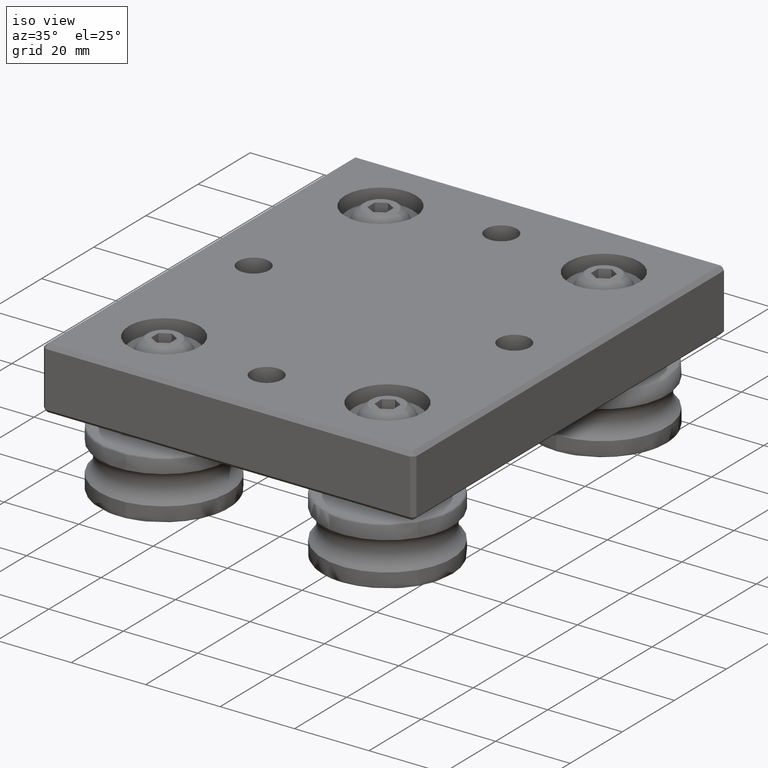
[diagram: clean part render]
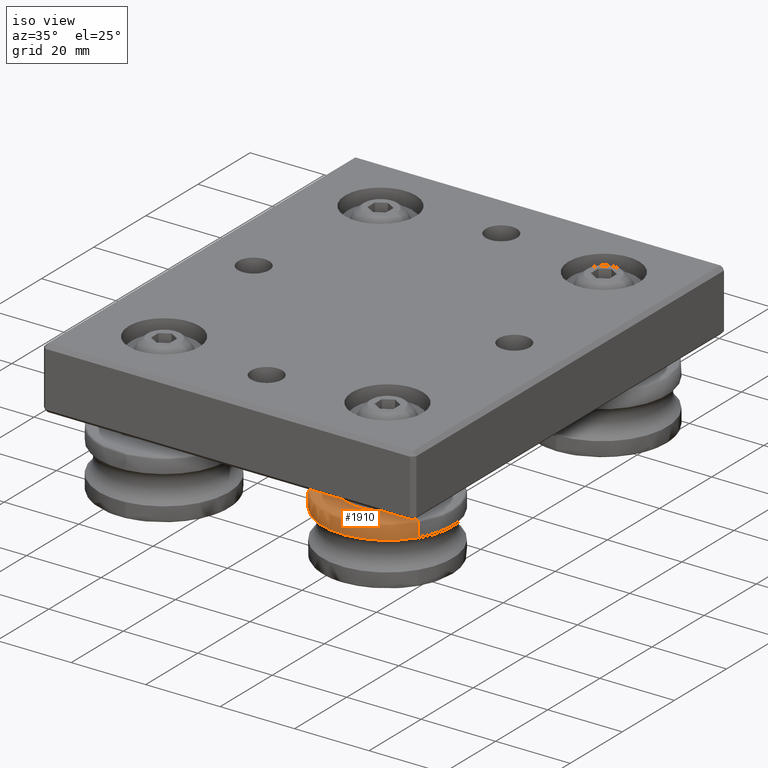
[diagram: same view with one face highlighted and labeled with its STEP entity id]
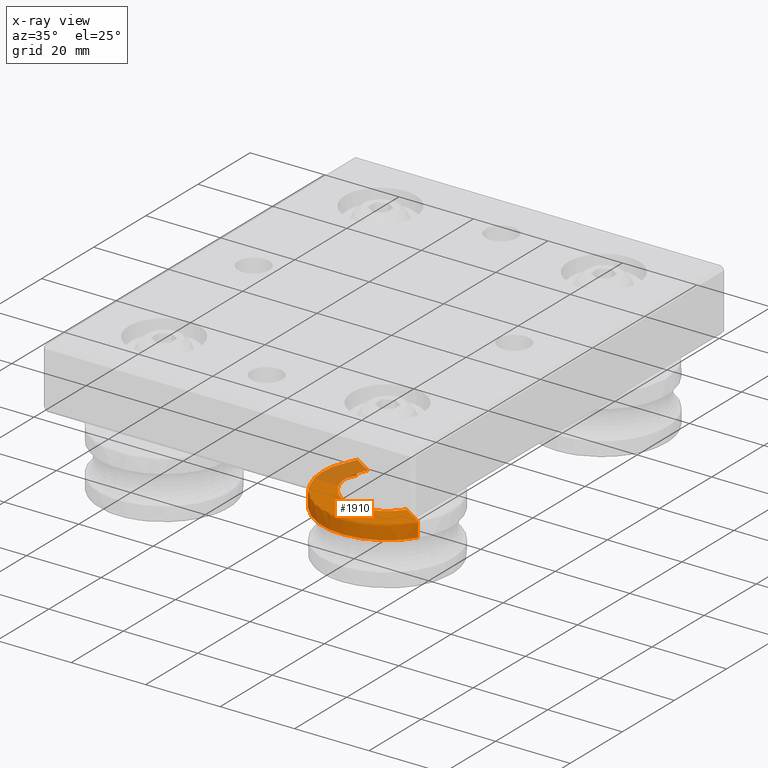
[diagram: x-ray of the same camera — body ghosted, the highlighted face saturated]
A machine part, iso view. The second image highlights one B-rep face of the part: STEP entity #1910.
The next image is the same camera in x-ray: the body ghosted, the highlighted face saturated — about 15% of this face is hidden behind the body in this view.
In plain terms, the highlighted face is a freeform B-spline surface patch.
Its self-contained STEP definition (entity closure, byte-faithful):
#59=(
BOUNDED_CURVE()
B_SPLINE_CURVE(2,(#3633,#3634,#3635,#3636,#3637,#3638,#3639),
 .UNSPECIFIED.,.F.,.F.)
B_SPLINE_CURVE_WITH_KNOTS((3,2,2,3),(-35.0418346007419,-29.0114897153448,
-28.2260915519473,-24.6912064928088),.UNSPECIFIED.)
CURVE()
GEOMETRIC_REPRESENTATION_ITEM()
RATIONAL_B_SPLINE_CURVE((1.,1.,1.,0.707106781186548,1.,1.,1.))
REPRESENTATION_ITEM('')
);
#60=(
BOUNDED_CURVE()
B_SPLINE_CURVE(2,(#3648,#3649,#3650,#3651,#3652,#3653,#3654),
 .UNSPECIFIED.,.F.,.F.)
B_SPLINE_CURVE_WITH_KNOTS((3,2,2,3),(-35.0418346007419,-29.0114897153448,
-28.2260915519473,-24.6912064928088),.UNSPECIFIED.)
CURVE()
GEOMETRIC_REPRESENTATION_ITEM()
RATIONAL_B_SPLINE_CURVE((1.,1.,1.,0.707106781186548,1.,1.,1.))
REPRESENTATION_ITEM('')
);
#73=(
BOUNDED_SURFACE()
B_SPLINE_SURFACE(2,2,((#3569,#3570,#3571,#3572,#3573,#3574,#3575,#3576,
#3577),(#3578,#3579,#3580,#3581,#3582,#3583,#3584,#3585,#3586),(#3587,#3588,
#3589,#3590,#3591,#3592,#3593,#3594,#3595),(#3596,#3597,#3598,#3599,#3600,
#3601,#3602,#3603,#3604),(#3605,#3606,#3607,#3608,#3609,#3610,#3611,#3612,
#3613),(#3614,#3615,#3616,#3617,#3618,#3619,#3620,#3621,#3622),(#3623,#3624,
#3625,#3626,#3627,#3628,#3629,#3630,#3631)),.UNSPECIFIED.,.F.,.T.,.F.)
B_SPLINE_SURFACE_WITH_KNOTS((3,2,2,3),(3,2,2,2,3),(-35.0418346007419,-29.0114897153448,
-28.2260915519473,-24.6590672150182),(4.71238898038469,6.28318530717959,
7.85398163397448,9.42477796076938,10.9955742875643),.UNSPECIFIED.)
GEOMETRIC_REPRESENTATION_ITEM()
RATIONAL_B_SPLINE_SURFACE(((1.,0.707106781186548,1.,0.707106781186548,1.,
0.707106781186548,1.,0.707106781186548,1.),(1.,0.707106781186548,1.,0.707106781186548,
1.,0.707106781186548,1.,0.707106781186548,1.),(1.,0.707106781186548,1.,
0.707106781186548,1.,0.707106781186548,1.,0.707106781186548,1.),(0.707106781186548,
0.5,0.707106781186548,0.5,0.707106781186548,0.5,0.707106781186548,0.5,0.707106781186548),
(1.,0.707106781186548,1.,0.707106781186548,1.,0.707106781186548,1.,0.707106781186548,
1.),(1.,0.707106781186548,1.,0.707106781186548,1.,0.707106781186548,1.,
0.707106781186548,1.),(1.,0.707106781186548,1.,0.707106781186548,1.,0.707106781186548,
1.,0.707106781186548,1.)))
REPRESENTATION_ITEM('')
SURFACE()
);
#283=CIRCLE('',#2178,17.5);
#286=CIRCLE('',#2181,10.9696551146025);
#287=CIRCLE('',#2182,10.9696551146025);
#288=CIRCLE('',#2183,10.9696551146025);
#289=CIRCLE('',#2184,10.9696551146025);
#401=FACE_OUTER_BOUND('',#548,.T.);
#548=EDGE_LOOP('',(#1582,#1583,#1584,#1585,#1586,#1587,#1588));
#961=VERTEX_POINT('',#3563);
#962=VERTEX_POINT('',#3565);
#963=VERTEX_POINT('',#3632);
#964=VERTEX_POINT('',#3640);
#965=VERTEX_POINT('',#3642);
#966=VERTEX_POINT('',#3644);
#967=VERTEX_POINT('',#3646);
#1173=EDGE_CURVE('',#961,#962,#283,.T.);
#1176=EDGE_CURVE('',#963,#961,#59,.T.);
#1177=EDGE_CURVE('',#963,#964,#286,.T.);
#1178=EDGE_CURVE('',#964,#965,#287,.T.);
#1179=EDGE_CURVE('',#965,#966,#288,.T.);
#1180=EDGE_CURVE('',#966,#967,#289,.T.);
#1181=EDGE_CURVE('',#967,#962,#60,.T.);
#1582=ORIENTED_EDGE('',*,*,#1173,.F.);
#1583=ORIENTED_EDGE('',*,*,#1176,.F.);
#1584=ORIENTED_EDGE('',*,*,#1177,.T.);
#1585=ORIENTED_EDGE('',*,*,#1178,.T.);
#1586=ORIENTED_EDGE('',*,*,#1179,.T.);
#1587=ORIENTED_EDGE('',*,*,#1180,.T.);
#1588=ORIENTED_EDGE('',*,*,#1181,.T.);
#1910=ADVANCED_FACE('',(#401),#73,.T.);
#2178=AXIS2_PLACEMENT_3D('',#3566,#2649,#2650);
#2181=AXIS2_PLACEMENT_3D('',#3641,#2655,#2656);
#2182=AXIS2_PLACEMENT_3D('',#3643,#2657,#2658);
#2183=AXIS2_PLACEMENT_3D('',#3645,#2659,#2660);
#2184=AXIS2_PLACEMENT_3D('',#3647,#2661,#2662);
#2649=DIRECTION('center_axis',(0.,0.,-1.));
#2650=DIRECTION('ref_axis',(-1.,0.,0.));
#2655=DIRECTION('center_axis',(1.01208562441235E-14,1.01208562441241E-14,
-1.));
#2656=DIRECTION('ref_axis',(0.,1.,1.01208562441241E-14));
#2657=DIRECTION('center_axis',(1.01208562441235E-14,1.01208562441241E-14,
-1.));
#2658=DIRECTION('ref_axis',(0.,1.,1.01208562441241E-14));
#2659=DIRECTION('center_axis',(1.01208562441235E-14,1.01208562441241E-14,
-1.));
#2660=DIRECTION('ref_axis',(0.,1.,1.01208562441241E-14));
#2661=DIRECTION('center_axis',(1.01208562441235E-14,1.01208562441241E-14,
-1.));
#2662=DIRECTION('ref_axis',(0.,1.,1.01208562441241E-14));
#3563=CARTESIAN_POINT('',(-1.07153055959535E-15,-17.4999999999997,-18.4348850592588));
#3565=CARTESIAN_POINT('',(1.14352971536391E-11,17.5000000000119,-18.4348850592588));
#3566=CARTESIAN_POINT('Origin',(1.14352971536391E-11,1.21291865440298E-11,
-18.4348850592774));
#3569=CARTESIAN_POINT('Ctrl Pts',(1.11299858218672E-11,10.9696551146152,
-14.4000000001203));
#3570=CARTESIAN_POINT('Ctrl Pts',(-10.9696551145919,10.9696551146149,-14.4000000001203));
#3571=CARTESIAN_POINT('Ctrl Pts',(-10.9696551145916,1.18238752122579E-11,
-14.4000000001203));
#3572=CARTESIAN_POINT('Ctrl Pts',(-10.9696551145913,-10.9696551145912,-14.4000000001203));
#3573=CARTESIAN_POINT('Ctrl Pts',(1.1740608485411E-11,-10.9696551145909,
-14.4000000001203));
#3574=CARTESIAN_POINT('Ctrl Pts',(10.9696551146148,-10.9696551145906,-14.4000000001203));
#3575=CARTESIAN_POINT('Ctrl Pts',(10.9696551146145,1.24344978758017E-11,
-14.4000000001203));
#3576=CARTESIAN_POINT('Ctrl Pts',(10.9696551146142,10.9696551146155,-14.4000000001203));
#3577=CARTESIAN_POINT('Ctrl Pts',(1.11299858218672E-11,10.9696551146152,
-14.4000000001203));
#3578=CARTESIAN_POINT('Ctrl Pts',(1.11577413974828E-11,13.9848275573132,
-14.4000000001203));
#3579=CARTESIAN_POINT('Ctrl Pts',(-13.9848275572899,13.9848275573129,-14.4000000001203));
#3580=CARTESIAN_POINT('Ctrl Pts',(-13.9848275572896,1.18516307878735E-11,
-14.4000000001203));
#3581=CARTESIAN_POINT('Ctrl Pts',(-13.9848275572893,-13.9848275572892,-14.4000000001203));
#3582=CARTESIAN_POINT('Ctrl Pts',(1.17128529097954E-11,-13.9848275572889,
-14.4000000001203));
#3583=CARTESIAN_POINT('Ctrl Pts',(13.9848275573127,-13.9848275572886,-14.4000000001203));
#3584=CARTESIAN_POINT('Ctrl Pts',(13.9848275573125,1.24067423001861E-11,
-14.4000000001203));
#3585=CARTESIAN_POINT('Ctrl Pts',(13.9848275573122,13.9848275573134,-14.4000000001203));
#3586=CARTESIAN_POINT('Ctrl Pts',(1.11577413974828E-11,13.9848275573132,
-14.4000000001203));
#3587=CARTESIAN_POINT('Ctrl Pts',(1.11577413974828E-11,17.0000000000122,
-14.4000000001203));
#3588=CARTESIAN_POINT('Ctrl Pts',(-16.9999999999889,17.0000000000119,-14.4000000001203));
#3589=CARTESIAN_POINT('Ctrl Pts',(-16.9999999999886,1.18516307878735E-11,
-14.4000000001203));
#3590=CARTESIAN_POINT('Ctrl Pts',(-16.9999999999883,-16.9999999999882,-14.4000000001203));
#3591=CARTESIAN_POINT('Ctrl Pts',(1.17128529097954E-11,-16.9999999999879,
-14.4000000001203));
#3592=CARTESIAN_POINT('Ctrl Pts',(17.0000000000117,-16.9999999999876,-14.4000000001203));
#3593=CARTESIAN_POINT('Ctrl Pts',(17.0000000000115,1.24067423001861E-11,
-14.4000000001203));
#3594=CARTESIAN_POINT('Ctrl Pts',(17.0000000000112,17.0000000000124,-14.4000000001203));
#3595=CARTESIAN_POINT('Ctrl Pts',(1.11577413974828E-11,17.0000000000122,
-14.4000000001203));
#3596=CARTESIAN_POINT('Ctrl Pts',(1.11799348284053E-11,17.5000000000124,
-14.4000000001202));
#3597=CARTESIAN_POINT('Ctrl Pts',(-17.4999999999891,17.5000000000121,-14.4000000001202));
#3598=CARTESIAN_POINT('Ctrl Pts',(-17.4999999999888,1.1873824218796E-11,
-14.4000000001202));
#3599=CARTESIAN_POINT('Ctrl Pts',(-17.4999999999885,-17.4999999999884,-14.4000000001202));
#3600=CARTESIAN_POINT('Ctrl Pts',(1.16906594788729E-11,-17.4999999999881,
-14.4000000001202));
#3601=CARTESIAN_POINT('Ctrl Pts',(17.5000000000119,-17.4999999999878,-14.4000000001202));
#3602=CARTESIAN_POINT('Ctrl Pts',(17.5000000000117,1.23845488692636E-11,
-14.4000000001202));
#3603=CARTESIAN_POINT('Ctrl Pts',(17.5000000000114,17.5000000000126,-14.4000000001202));
#3604=CARTESIAN_POINT('Ctrl Pts',(1.11799348284053E-11,17.5000000000124,
-14.4000000001202));
#3605=CARTESIAN_POINT('Ctrl Pts',(1.11577413974828E-11,17.5000000000122,
-14.9000000001203));
#3606=CARTESIAN_POINT('Ctrl Pts',(-17.4999999999889,17.5000000000119,-14.9000000001203));
#3607=CARTESIAN_POINT('Ctrl Pts',(-17.4999999999886,1.18516307878735E-11,
-14.9000000001203));
#3608=CARTESIAN_POINT('Ctrl Pts',(-17.4999999999883,-17.4999999999882,-14.9000000001203));
#3609=CARTESIAN_POINT('Ctrl Pts',(1.17128529097954E-11,-17.4999999999879,
-14.9000000001203));
#3610=CARTESIAN_POINT('Ctrl Pts',(17.5000000000117,-17.4999999999876,-14.9000000001203));
#3611=CARTESIAN_POINT('Ctrl Pts',(17.5000000000115,1.24067423001861E-11,
-14.9000000001203));
#3612=CARTESIAN_POINT('Ctrl Pts',(17.5000000000112,17.5000000000124,-14.9000000001203));
#3613=CARTESIAN_POINT('Ctrl Pts',(1.11577413974828E-11,17.5000000000122,
-14.9000000001203));
#3614=CARTESIAN_POINT('Ctrl Pts',(1.11577413974828E-11,17.5000000000122,
-16.6835121685849));
#3615=CARTESIAN_POINT('Ctrl Pts',(-17.4999999999889,17.5000000000119,-16.6835121685849));
#3616=CARTESIAN_POINT('Ctrl Pts',(-17.4999999999886,1.18516307878735E-11,
-16.6835121685849));
#3617=CARTESIAN_POINT('Ctrl Pts',(-17.4999999999883,-17.4999999999882,-16.6835121685849));
#3618=CARTESIAN_POINT('Ctrl Pts',(1.17128529097954E-11,-17.4999999999879,
-16.6835121685849));
#3619=CARTESIAN_POINT('Ctrl Pts',(17.5000000000117,-17.4999999999876,-16.6835121685849));
#3620=CARTESIAN_POINT('Ctrl Pts',(17.5000000000115,1.24067423001861E-11,
-16.6835121685849));
#3621=CARTESIAN_POINT('Ctrl Pts',(17.5000000000112,17.5000000000124,-16.6835121685849));
#3622=CARTESIAN_POINT('Ctrl Pts',(1.11577413974828E-11,17.5000000000122,
-16.6835121685849));
#3623=CARTESIAN_POINT('Ctrl Pts',(1.11577413974828E-11,17.5000000000122,
-18.4670243370494));
#3624=CARTESIAN_POINT('Ctrl Pts',(-17.4999999999889,17.5000000000119,-18.4670243370494));
#3625=CARTESIAN_POINT('Ctrl Pts',(-17.4999999999886,1.18516307878735E-11,
-18.4670243370494));
#3626=CARTESIAN_POINT('Ctrl Pts',(-17.4999999999883,-17.4999999999882,-18.4670243370494));
#3627=CARTESIAN_POINT('Ctrl Pts',(1.17128529097954E-11,-17.4999999999879,
-18.4670243370494));
#3628=CARTESIAN_POINT('Ctrl Pts',(17.5000000000117,-17.4999999999876,-18.4670243370494));
#3629=CARTESIAN_POINT('Ctrl Pts',(17.5000000000115,1.24067423001861E-11,
-18.4670243370494));
#3630=CARTESIAN_POINT('Ctrl Pts',(17.5000000000112,17.5000000000124,-18.4670243370494));
#3631=CARTESIAN_POINT('Ctrl Pts',(1.11577413974828E-11,17.5000000000122,
-18.4670243370494));
#3632=CARTESIAN_POINT('',(1.15671361378133E-11,-10.9696551145909,-14.4000000001203));
#3633=CARTESIAN_POINT('Ctrl Pts',(1.1740608485411E-11,-10.9696551145909,
-14.4000000001203));
#3634=CARTESIAN_POINT('Ctrl Pts',(1.17128529097954E-11,-13.9848275572889,
-14.4000000001203));
#3635=CARTESIAN_POINT('Ctrl Pts',(1.17128529097954E-11,-16.9999999999879,
-14.4000000001203));
#3636=CARTESIAN_POINT('Ctrl Pts',(1.16906594788729E-11,-17.4999999999881,
-14.4000000001202));
#3637=CARTESIAN_POINT('Ctrl Pts',(1.17128529097954E-11,-17.4999999999879,
-14.9000000001203));
#3638=CARTESIAN_POINT('Ctrl Pts',(1.17128529097954E-11,-17.4999999999879,
-16.6674425296896));
#3639=CARTESIAN_POINT('Ctrl Pts',(1.17128529097954E-11,-17.4999999999879,
-18.4348850592588));
#3640=CARTESIAN_POINT('',(-5.48482755730141,-9.50000000000017,-14.4000000001201));
#3641=CARTESIAN_POINT('Origin',(1.14352971536391E-11,1.14908083048704E-11,
-14.4000000001202));
#3642=CARTESIAN_POINT('',(-10.9696551146029,-1.84929452501313E-13,-14.4000000001202));
#3643=CARTESIAN_POINT('Origin',(1.14352971536391E-11,1.14908083048704E-11,
-14.4000000001202));
#3644=CARTESIAN_POINT('',(-5.48482755730145,9.49999999999982,-14.4000000001203));
#3645=CARTESIAN_POINT('Origin',(1.14352971536391E-11,1.14908083048704E-11,
-14.4000000001202));
#3646=CARTESIAN_POINT('',(1.14352971536391E-11,10.9696551146148,-14.4000000001203));
#3647=CARTESIAN_POINT('Origin',(1.14352971536391E-11,1.14908083048704E-11,
-14.4000000001202));
#3648=CARTESIAN_POINT('Ctrl Pts',(1.11299858218672E-11,10.9696551146152,
-14.4000000001203));
#3649=CARTESIAN_POINT('Ctrl Pts',(1.11577413974828E-11,13.9848275573132,
-14.4000000001203));
#3650=CARTESIAN_POINT('Ctrl Pts',(1.11577413974828E-11,17.0000000000122,
-14.4000000001203));
#3651=CARTESIAN_POINT('Ctrl Pts',(1.11799348284053E-11,17.5000000000124,
-14.4000000001202));
#3652=CARTESIAN_POINT('Ctrl Pts',(1.11577413974828E-11,17.5000000000122,
-14.9000000001203));
#3653=CARTESIAN_POINT('Ctrl Pts',(1.11577413974828E-11,17.5000000000122,
-16.6674425296896));
#3654=CARTESIAN_POINT('Ctrl Pts',(1.11577413974828E-11,17.5000000000122,
-18.4348850592588));